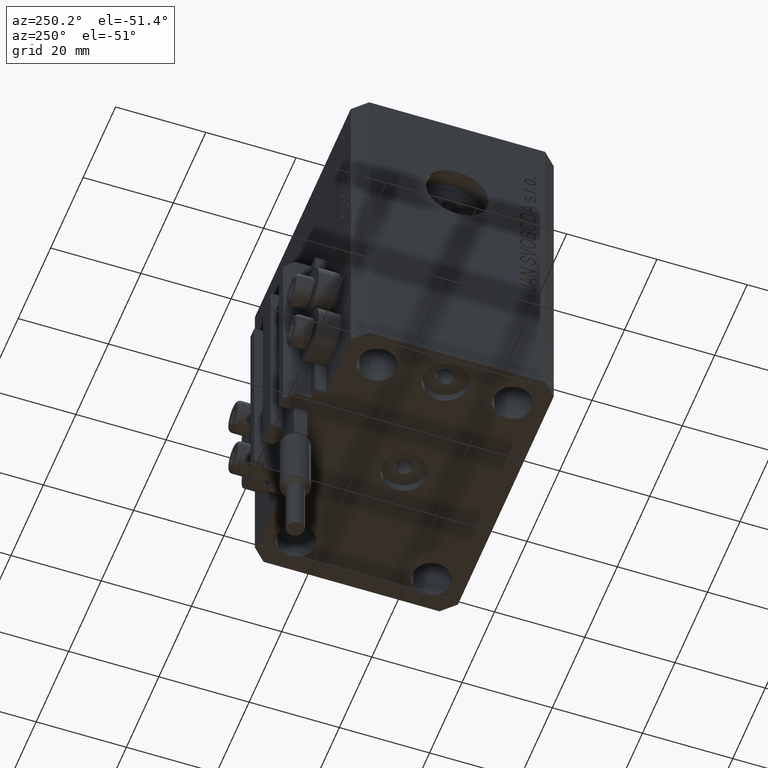
[diagram: clean part render]
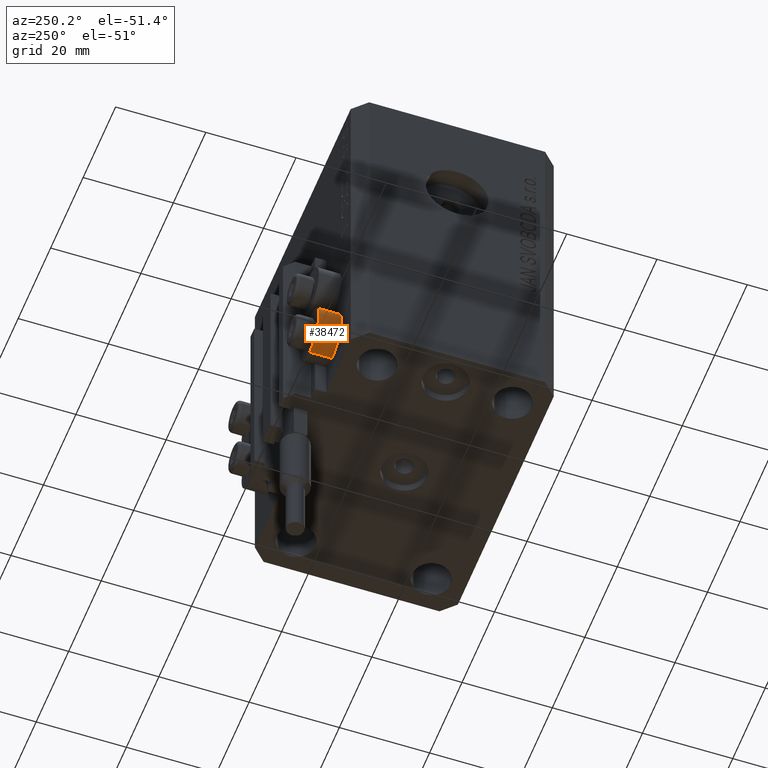
[diagram: same view with one face highlighted and labeled with its STEP entity id]
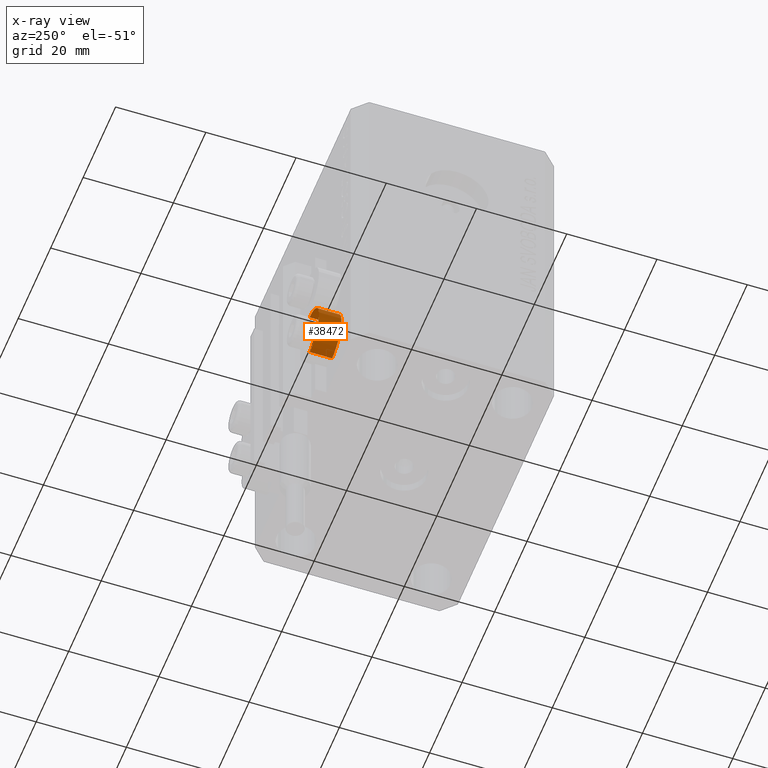
[diagram: x-ray of the same camera — body ghosted, the highlighted face saturated]
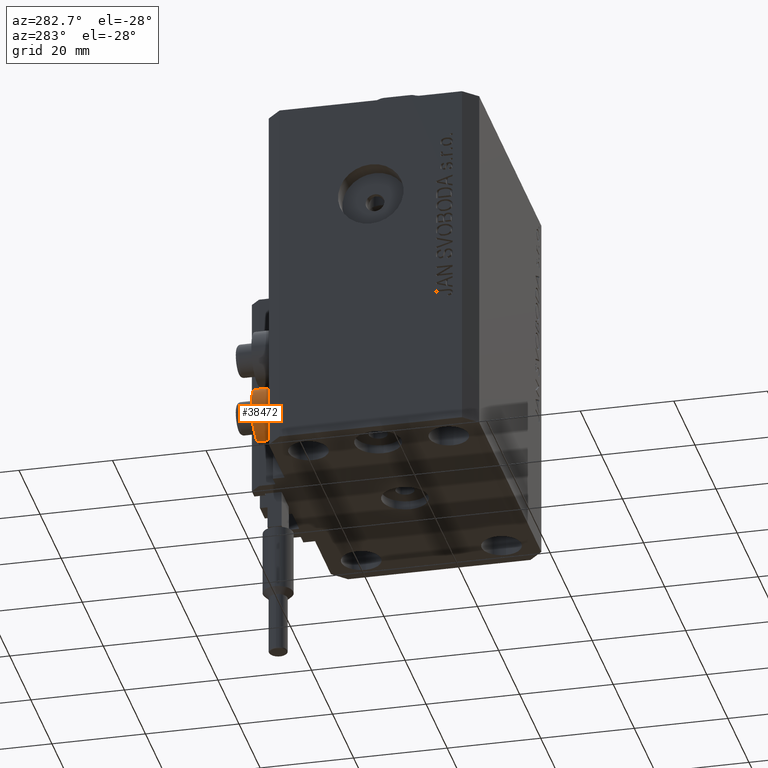
[diagram: same view with one face highlighted and labeled with its STEP entity id]
A machine part, auxiliary view. The second image highlights one B-rep face of the part: STEP entity #38472.
The next image is the same camera in x-ray: the body ghosted, the highlighted face saturated — about 0% of this face is hidden behind the body in this view.
A second angle (auxiliary view) of the same face is appended — the face is thin or edge-on in the first view.
In plain terms, the highlighted cylindrical surface (edge-blend (fillet) strip) has radius 5.8 mm, axis along (0, 1, 0).
Its self-contained STEP definition (entity closure, byte-faithful):
#5993 = AXIS2_PLACEMENT_3D ( 'NONE', #21267, #6138, #21026 ) ;
#6138 = DIRECTION ( 'NONE',  ( -0.000000000000000000, -1.000000000000000000, -0.000000000000000000 ) ) ;
#6163 = DIRECTION ( 'NONE',  ( 0.000000000000000000, 1.000000000000000000, 0.000000000000000000 ) ) ;
#6520 = EDGE_CURVE ( 'NONE', #43429, #10609, #47929, .T. ) ;
#10072 = DIRECTION ( 'NONE',  ( 0.000000000000000000, 0.000000000000000000, -1.000000000000000000 ) ) ;
#10309 = FACE_OUTER_BOUND ( 'NONE', #13797, .T. ) ;
#10609 = VERTEX_POINT ( 'NONE', #32278 ) ;
#12044 = ORIENTED_EDGE ( 'NONE', *, *, #45182, .T. ) ;
#12245 = CIRCLE ( 'NONE', #5993, 5.799999999999999822 ) ;
#12376 = CARTESIAN_POINT ( 'NONE',  ( -18.00000000000000355, 27.49999999996051514, -58.20000000000000284 ) ) ;
#13797 = EDGE_LOOP ( 'NONE', ( #28428, #18638, #12044, #24788 ) ) ;
#14482 = VECTOR ( 'NONE', #26420, 1000.000000000000000 ) ;
#17760 = DIRECTION ( 'NONE',  ( 0.000000000000000000, 0.000000000000000000, -1.000000000000000000 ) ) ;
#18638 = ORIENTED_EDGE ( 'NONE', *, *, #30849, .T. ) ;
#20577 = AXIS2_PLACEMENT_3D ( 'NONE', #21665, #22153, #17760 ) ;
#21026 = DIRECTION ( 'NONE',  ( 0.000000000000000000, 0.000000000000000000, -1.000000000000000000 ) ) ;
#21267 = CARTESIAN_POINT ( 'NONE',  ( -18.00000000000000355, 27.49999999996051514, -64.00000000000000000 ) ) ;
#21665 = CARTESIAN_POINT ( 'NONE',  ( -18.00000000000000355, 22.49999999999951328, -64.00000000000000000 ) ) ;
#22153 = DIRECTION ( 'NONE',  ( -0.000000000000000000, -1.000000000000000000, -0.000000000000000000 ) ) ;
#22887 = CARTESIAN_POINT ( 'NONE',  ( -18.00000000000000355, 22.49999999999951328, -69.79999999999999716 ) ) ;
#22945 = CIRCLE ( 'NONE', #20577, 5.799999999999999822 ) ;
#22957 = AXIS2_PLACEMENT_3D ( 'NONE', #39357, #6163, #10072 ) ;
#24191 = EDGE_CURVE ( 'NONE', #34108, #43429, #22945, .T. ) ;
#24788 = ORIENTED_EDGE ( 'NONE', *, *, #6520, .F. ) ;
#26420 = DIRECTION ( 'NONE',  ( 0.000000000000000000, 1.000000000000000000, 0.000000000000000000 ) ) ;
#26658 = CARTESIAN_POINT ( 'NONE',  ( -18.00000000000000355, 27.49999999996051514, -69.79999999999999716 ) ) ;
#28428 = ORIENTED_EDGE ( 'NONE', *, *, #24191, .F. ) ;
#30849 = EDGE_CURVE ( 'NONE', #34108, #42036, #33635, .T. ) ;
#32278 = CARTESIAN_POINT ( 'NONE',  ( -18.00000000000000355, 27.49999999996051514, -69.79999999999999716 ) ) ;
#32294 = CYLINDRICAL_SURFACE ( 'NONE', #22957, 5.799999999999999822 ) ;
#33579 = CARTESIAN_POINT ( 'NONE',  ( -18.00000000000000355, 22.49999999999951328, -58.20000000000000284 ) ) ;
#33635 = LINE ( 'NONE', #12376, #43057 ) ;
#34108 = VERTEX_POINT ( 'NONE', #33579 ) ;
#38472 = ADVANCED_FACE ( 'NONE', ( #10309 ), #32294, .T. ) ;
#39357 = CARTESIAN_POINT ( 'NONE',  ( -18.00000000000000355, 27.49999999996051514, -64.00000000000000000 ) ) ;
#39748 = CARTESIAN_POINT ( 'NONE',  ( -18.00000000000000355, 27.49999999996051514, -58.20000000000000284 ) ) ;
#42036 = VERTEX_POINT ( 'NONE', #39748 ) ;
#43057 = VECTOR ( 'NONE', #44832, 1000.000000000000000 ) ;
#43429 = VERTEX_POINT ( 'NONE', #22887 ) ;
#44832 = DIRECTION ( 'NONE',  ( 0.000000000000000000, 1.000000000000000000, 0.000000000000000000 ) ) ;
#45182 = EDGE_CURVE ( 'NONE', #42036, #10609, #12245, .T. ) ;
#47929 = LINE ( 'NONE', #26658, #14482 ) ;